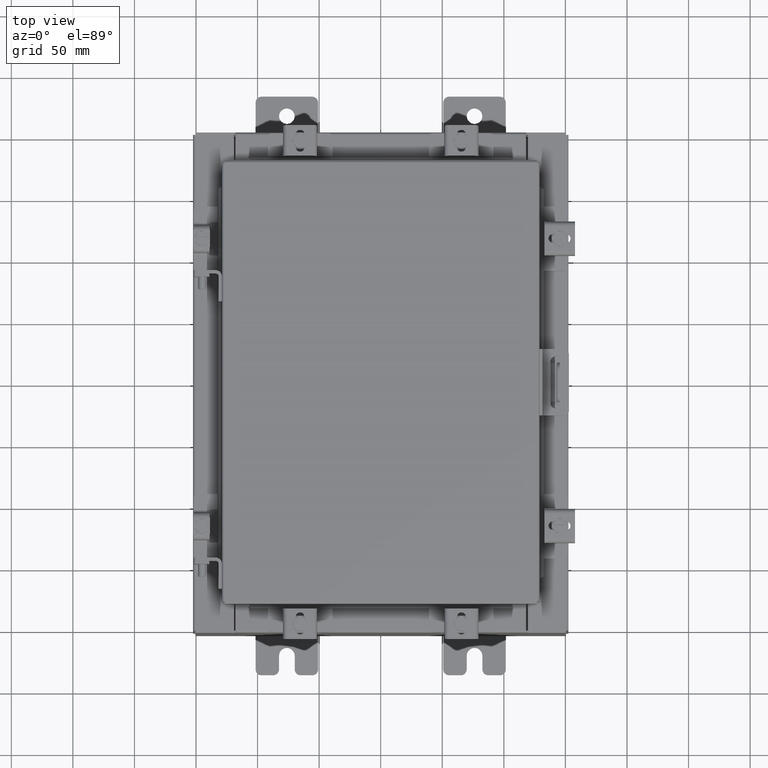
[diagram: clean part render]
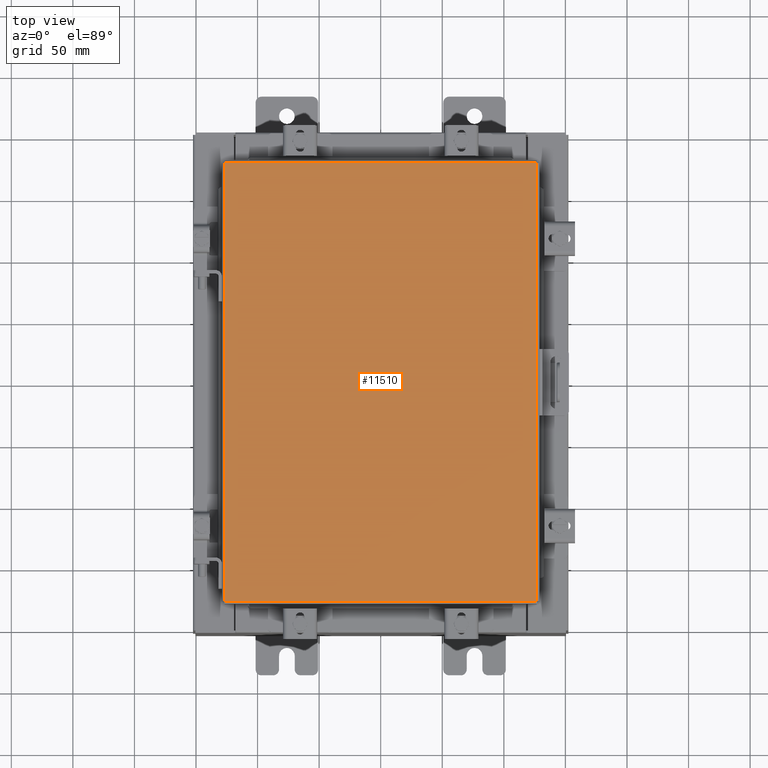
[diagram: same view with one face highlighted and labeled with its STEP entity id]
A machine part, top view. The second image highlights one B-rep face of the part: STEP entity #11510.
In plain terms, the highlighted planar face has unit normal (0, 0, -1).
Its self-contained STEP definition (entity closure, byte-faithful):
#167 = AXIS2_PLACEMENT_3D ( 'NONE', #13092, #8339, #19540 ) ;
#266 = LINE ( 'NONE', #14314, #20655 ) ;
#331 = VECTOR ( 'NONE', #13328, 39.37007874015748100 ) ;
#652 = DIRECTION ( 'NONE',  ( 1.000000000000000000, -0.0000000000000000000, -0.0000000000000000000 ) ) ;
#913 = ORIENTED_EDGE ( 'NONE', *, *, #12309, .T. ) ;
#1709 = LINE ( 'NONE', #18431, #14554 ) ;
#2899 = ORIENTED_EDGE ( 'NONE', *, *, #8497, .T. ) ;
#3340 = VERTEX_POINT ( 'NONE', #4990 ) ;
#4990 = CARTESIAN_POINT ( 'NONE',  ( -4.990300000000000400, -7.006300000000000400, 0.0000000000000000000 ) ) ;
#5412 = EDGE_LOOP ( 'NONE', ( #2899, #19612, #15891, #913 ) ) ;
#6299 = DIRECTION ( 'NONE',  ( 0.0000000000000000000, 1.000000000000000000, 0.0000000000000000000 ) ) ;
#6718 = PLANE ( 'NONE',  #167 ) ;
#8339 = DIRECTION ( 'NONE',  ( 0.0000000000000000000, 0.0000000000000000000, -1.000000000000000000 ) ) ;
#8497 = EDGE_CURVE ( 'NONE', #3340, #12306, #1709, .T. ) ;
#9264 = DIRECTION ( 'NONE',  ( -1.000000000000000000, -0.0000000000000000000, -0.0000000000000000000 ) ) ;
#9755 = VERTEX_POINT ( 'NONE', #19087 ) ;
#10111 = CARTESIAN_POINT ( 'NONE',  ( -4.990300000000000400, 7.006300000000000400, 0.0000000000000000000 ) ) ;
#10358 = LINE ( 'NONE', #18851, #10876 ) ;
#10876 = VECTOR ( 'NONE', #9264, 39.37007874015748100 ) ;
#11510 = ADVANCED_FACE ( 'NONE', ( #18729 ), #6718, .F. ) ;
#12306 = VERTEX_POINT ( 'NONE', #19722 ) ;
#12309 = EDGE_CURVE ( 'NONE', #9755, #3340, #17931, .T. ) ;
#13092 = CARTESIAN_POINT ( 'NONE',  ( 0.0000000000000000000, 0.0000000000000000000, 0.0000000000000000000 ) ) ;
#13328 = DIRECTION ( 'NONE',  ( 0.0000000000000000000, -1.000000000000000000, 0.0000000000000000000 ) ) ;
#14314 = CARTESIAN_POINT ( 'NONE',  ( 4.990299999999998600, -7.006300000000000400, 0.0000000000000000000 ) ) ;
#14554 = VECTOR ( 'NONE', #652, 39.37007874015748100 ) ;
#15331 = CARTESIAN_POINT ( 'NONE',  ( 4.990299999999998600, 7.006300000000000400, 0.0000000000000000000 ) ) ;
#15891 = ORIENTED_EDGE ( 'NONE', *, *, #17093, .T. ) ;
#17093 = EDGE_CURVE ( 'NONE', #20194, #9755, #10358, .T. ) ;
#17184 = EDGE_CURVE ( 'NONE', #12306, #20194, #266, .T. ) ;
#17931 = LINE ( 'NONE', #10111, #331 ) ;
#18431 = CARTESIAN_POINT ( 'NONE',  ( -4.990300000000000400, -7.006300000000000400, 0.0000000000000000000 ) ) ;
#18729 = FACE_OUTER_BOUND ( 'NONE', #5412, .T. ) ;
#18851 = CARTESIAN_POINT ( 'NONE',  ( 4.990299999999998600, 7.006300000000000400, 0.0000000000000000000 ) ) ;
#19087 = CARTESIAN_POINT ( 'NONE',  ( -4.990300000000000400, 7.006300000000000400, 0.0000000000000000000 ) ) ;
#19540 = DIRECTION ( 'NONE',  ( -1.000000000000000000, 0.0000000000000000000, -0.0000000000000000000 ) ) ;
#19612 = ORIENTED_EDGE ( 'NONE', *, *, #17184, .T. ) ;
#19722 = CARTESIAN_POINT ( 'NONE',  ( 4.990299999999998600, -7.006300000000000400, 0.0000000000000000000 ) ) ;
#20194 = VERTEX_POINT ( 'NONE', #15331 ) ;
#20655 = VECTOR ( 'NONE', #6299, 39.37007874015748100 ) ;